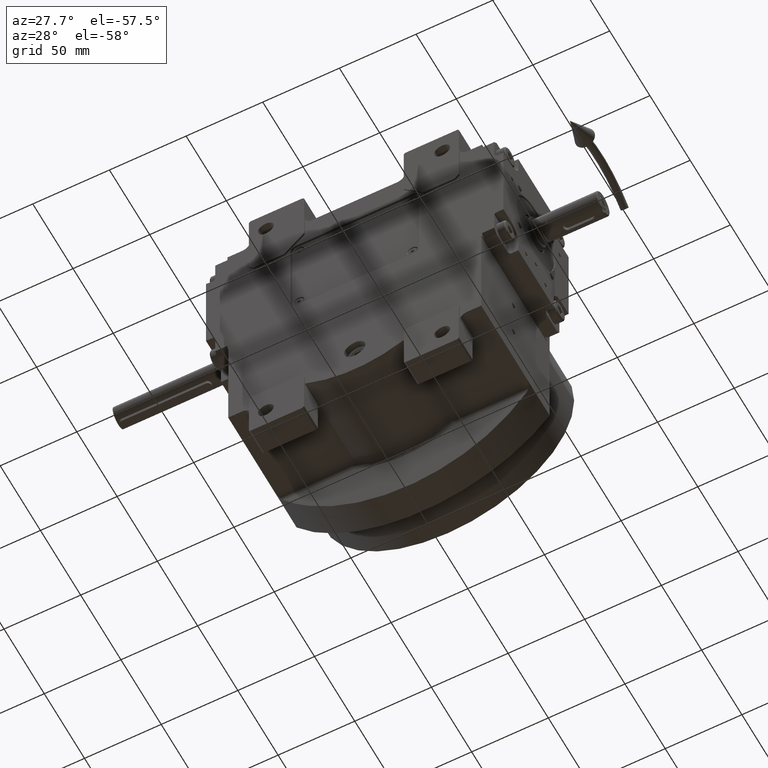
[diagram: clean part render]
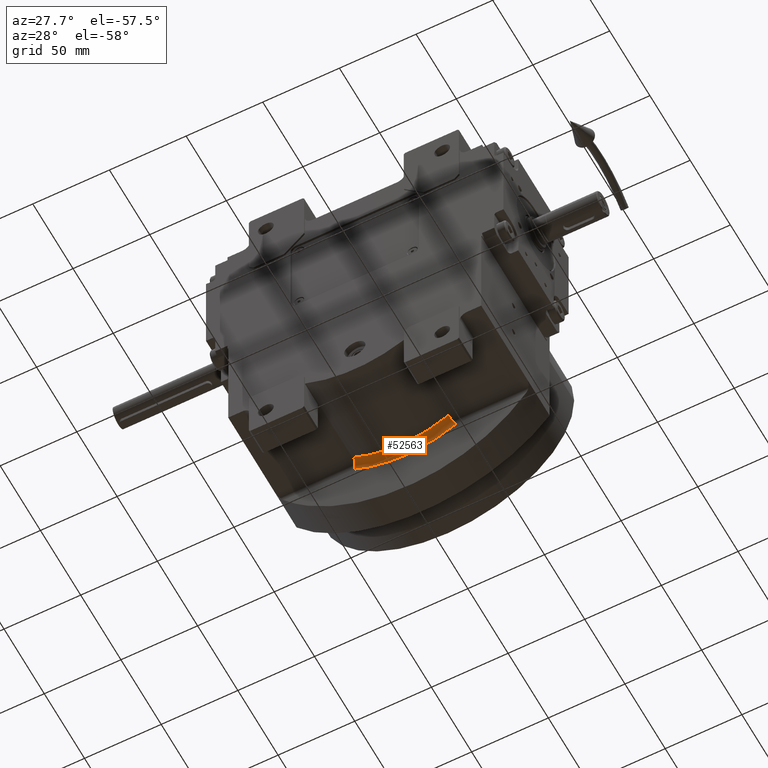
[diagram: same view with one face highlighted and labeled with its STEP entity id]
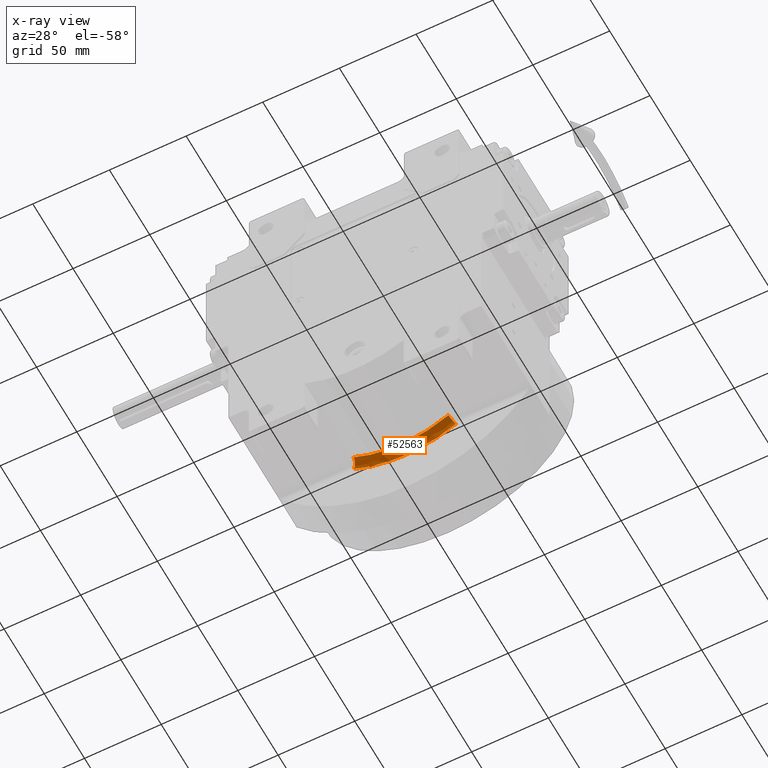
[diagram: x-ray of the same camera — body ghosted, the highlighted face saturated]
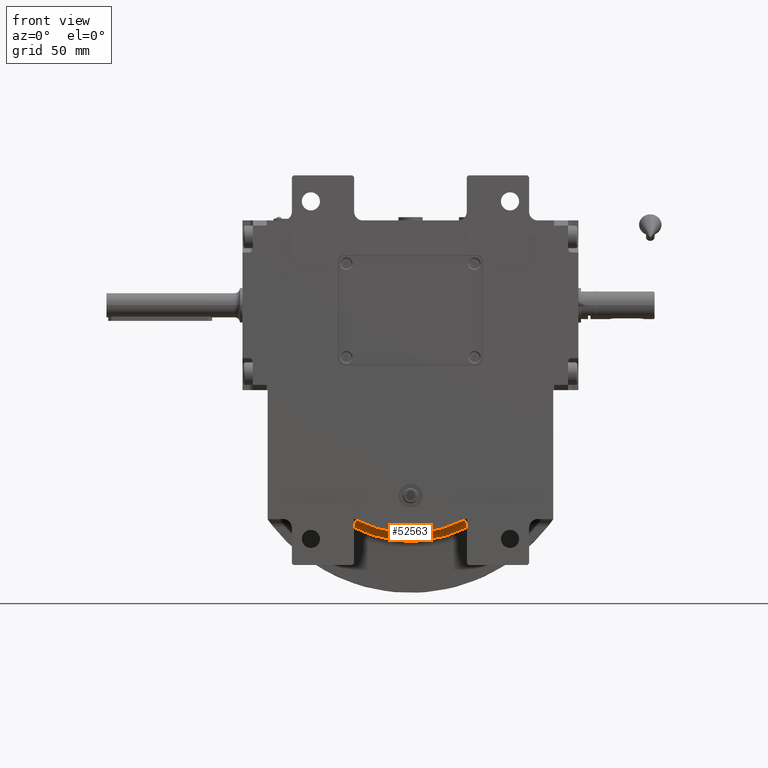
[diagram: same view with one face highlighted and labeled with its STEP entity id]
A machine part, auxiliary view. The second image highlights one B-rep face of the part: STEP entity #52563.
The next image is the same camera in x-ray: the body ghosted, the highlighted face saturated — about 0% of this face is hidden behind the body in this view.
A second angle (front view) of the same face is appended — the face is thin or edge-on in the first view.
In plain terms, the highlighted face is a freeform B-spline surface patch.
Its self-contained STEP definition (entity closure, byte-faithful):
#56 = CARTESIAN_POINT ( 'NONE',  ( 14.00735235895940001, 17.51551953820434804, -65.41954814128840212 ) ) ;
#154 = CARTESIAN_POINT ( 'NONE',  ( 31.74547530109787630, 20.30552541977634462, -60.17853831376050522 ) ) ;
#670 = CARTESIAN_POINT ( 'NONE',  ( 33.32502203102834670, 21.89931739189994886, -63.06422130460889974 ) ) ;
#701 = CARTESIAN_POINT ( 'NONE',  ( -4.867164775838819679, 21.38062313142870252, -68.31215727338249621 ) ) ;
#731 = CARTESIAN_POINT ( 'NONE',  ( 31.01082997317644896, 16.91834280290945003, -59.06778360361650471 ) ) ;
#1009 = CARTESIAN_POINT ( 'NONE',  ( 4.696800822195740466, 18.47300757156740048, -66.73299136699679934 ) ) ;
#1635 = CARTESIAN_POINT ( 'NONE',  ( -14.92925552228664010, 22.43463514342269960, -69.10560733178479609 ) ) ;
#2251 = CARTESIAN_POINT ( 'NONE',  ( -4.971671161972529340, 22.28796836702294826, -69.71304722794390329 ) ) ;
#2580 = CARTESIAN_POINT ( 'NONE',  ( 29.82807259730119753, 21.69214259482015095, -63.05631066464879808 ) ) ;
#4002 = CARTESIAN_POINT ( 'NONE',  ( 33.32502203102834670, 21.89931739189994886, -63.06422130460889974 ) ) ;
#4323 = CARTESIAN_POINT ( 'NONE',  ( 31.54095875828022599, 19.81191290899446855, -59.82985280089748414 ) ) ;
#4567 = CARTESIAN_POINT ( 'NONE',  ( -23.31309263405200127, 20.39445905987249930, -63.78361551056140399 ) ) ;
#4665 = CARTESIAN_POINT ( 'NONE',  ( 31.12368750863186051, 18.13956761744755397, -59.17709350793280976 ) ) ;
#4875 = CARTESIAN_POINT ( 'NONE',  ( 4.825413243487469472, 21.38089252597094969, -68.31510519091570188 ) ) ;
#4971 = CARTESIAN_POINT ( 'NONE',  ( 32.88977698398858251, 21.73860324339993610, -62.24470787149341788 ) ) ;
#5187 = CARTESIAN_POINT ( 'NONE',  ( -14.12086927449369966, 19.16926417740874911, -65.61028580125960730 ) ) ;
#5285 = CARTESIAN_POINT ( 'NONE',  ( 31.10165154074177352, 17.98725869836273006, -59.14819376876292267 ) ) ;
#5514 = CARTESIAN_POINT ( 'NONE',  ( -14.04715672780992008, 17.51472106833425002, -65.41105537727230512 ) ) ;
#6710 = VERTEX_POINT ( 'NONE', #20248 ) ;
#6875 = CARTESIAN_POINT ( 'NONE',  ( -31.16669107157252228, 18.57176978245651000, -59.22174434882904848 ) ) ;
#7058 = CARTESIAN_POINT ( 'NONE',  ( -14.75615015940871899, 22.16326237045709746, -68.31944875908919812 ) ) ;
#8826 = CARTESIAN_POINT ( 'NONE',  ( 32.29690182452948477, 21.21375352228058020, -61.15495260773317199 ) ) ;
#9142 = CARTESIAN_POINT ( 'NONE',  ( 31.04561413428934813, 17.52912269005599555, -59.08095735866881171 ) ) ;
#9707 = CARTESIAN_POINT ( 'NONE',  ( -4.737440298471509159, 18.47273911348515085, -66.73013256263419635 ) ) ;
#9804 = CARTESIAN_POINT ( 'NONE',  ( 31.21977500875764733, 18.66627516577064583, -59.31513820626550171 ) ) ;
#10009 = CARTESIAN_POINT ( 'NONE',  ( -14.31440710436212171, 20.63461172167005131, -66.38690850966169421 ) ) ;
#10326 = CARTESIAN_POINT ( 'NONE',  ( 22.87977691528549684, 18.11004521874100348, -62.86801402108770276 ) ) ;
#10654 = CARTESIAN_POINT ( 'NONE',  ( -22.99954056589934837, 18.92952171832104824, -63.04667322140360142 ) ) ;
#10956 = CARTESIAN_POINT ( 'NONE',  ( 31.58791220059754679, 20.03612887826825073, -59.90034523868260408 ) ) ;
#11105 = EDGE_CURVE ( 'NONE', #36128, #61800, #61182, .T. ) ;
#11301 = CARTESIAN_POINT ( 'NONE',  ( -22.88139142631801093, 17.27544324201323533, -62.86600932862140922 ) ) ;
#11382 = CARTESIAN_POINT ( 'NONE',  ( -33.32502203188484913, 21.89931762037159757, -63.06422128626171286 ) ) ;
#11581 = CARTESIAN_POINT ( 'NONE',  ( 24.28574528749259898, 22.19493289590700158, -66.39603628297889770 ) ) ;
#11909 = CARTESIAN_POINT ( 'NONE',  ( -24.03087230061749935, 21.92268178516724930, -65.63130644388060375 ) ) ;
#12208 = CARTESIAN_POINT ( 'NONE',  ( 32.93784733879725479, 21.83493790743320062, -62.32834323049090131 ) ) ;
#12243 = CARTESIAN_POINT ( 'NONE',  ( -14.04715675440153788, 17.51472253625830788, -65.41105537243242907 ) ) ;
#13659 = CARTESIAN_POINT ( 'NONE',  ( 32.46189448114522946, 21.39864433653107056, -61.45497471648384646 ) ) ;
#13781 = CARTESIAN_POINT ( 'NONE',  ( -31.01083289208810001, 16.91834344194605322, -59.06778513317789958 ) ) ;
#13981 = CARTESIAN_POINT ( 'NONE',  ( 31.18218361866833277, 18.47945513033626597, -59.25946096699433951 ) ) ;
#14049 = B_SPLINE_CURVE_WITH_KNOTS ( 'NONE', 3,
 ( #48495, #53979, #9142, #5285, #4665, #23683, #13981, #39145, #9804, #24338, #34639, #43699, #33362, #19162, #4323, #18503, #29496, #53638, #44328, #38170, #28844, #154, #58474, #29166, #19806, #39479, #8826, #57831, #48838, #44017, #14954, #13659, #54291, #33666, #63636, #48181, #63327, #43037, #38824, #49145, #58173, #53027, #43353, #59133, #4971, #28526, #19480, #4002 ),
 .UNSPECIFIED., .F., .F.,
 ( 4, 2, 2, 1, 1, 2, 2, 2, 2, 1, 1, 1, 2, 2, 2, 2, 2, 1, 1, 1, 2, 2, 2, 2, 1, 1, 2, 2, 4 ),
 ( 0.000000000000000000, 0.1250000000000210110, 0.1875000000000322242, 0.2187500000000378308, 0.2343750000000400791, 0.2421875000000407174, 0.2500000000000413003, 0.3750000000000577871, 0.4375000000000656697, 0.4687500000000708322, 0.4843750000000737743, 0.4921875000000754952, 0.4960937500000759393, 0.5000000000000763833, 0.6250000000000451861, 0.6875000000000315303, 0.7187500000000246470, 0.7343750000000213163, 0.7421875000000198730, 0.7460937500000194289, 0.7480468750000197620, 0.7500000000000199840, 0.8125000000000304201, 0.8437500000000349720, 0.8593750000000376366, 0.8671875000000388578, 0.8710937500000399680, 0.8750000000000410783, 1.000000000000000000 ),
 .UNSPECIFIED. ) ;
#14514 = CARTESIAN_POINT ( 'NONE',  ( 14.27385277678903996, 20.63541323951745099, -66.39559700889179794 ) ) ;
#14859 = CARTESIAN_POINT ( 'NONE',  ( 28.55215417126150257, 18.69975871979575288, -60.59011769471679543 ) ) ;
#14954 = CARTESIAN_POINT ( 'NONE',  ( 32.44551883454309404, 21.38175331640223931, -61.42508377505632922 ) ) ;
#15165 = CARTESIAN_POINT ( 'NONE',  ( -31.16669107689925156, 18.57176978219575147, -59.22174434604119853 ) ) ;
#15795 = CARTESIAN_POINT ( 'NONE',  ( 28.40796176214000113, 17.04610771505474887, -60.42674379178529875 ) ) ;
#16145 = CARTESIAN_POINT ( 'NONE',  ( -31.01083289208810001, 16.91834344194605322, -59.06778513317789958 ) ) ;
#16460 = CARTESIAN_POINT ( 'NONE',  ( 14.00735238547911443, 17.51552100612983764, -65.41954813648067102 ) ) ;
#17057 = CARTESIAN_POINT ( 'NONE',  ( -33.32502203188645495, 21.89931657337954718, -63.06422137785770587 ) ) ;
#18144 = B_SPLINE_CURVE_WITH_KNOTS ( 'NONE', 3,
 ( #731, #40044, #45515, #16460, #61566, #31627, #12243, #11301, #31934, #16145 ),
 .UNSPECIFIED., .F., .F.,
 ( 4, 1, 1, 1, 1, 1, 1, 4 ),
 ( 0.000000000000000000, 0.1367548681578994729, 0.2816978903022379632, 0.4273669404849712028, 0.5732621552178546187, 0.7189314110037055006, 0.8638748398661794115, 1.000000000000000000 ),
 .UNSPECIFIED. ) ;
#18503 = CARTESIAN_POINT ( 'NONE',  ( 31.61495374429933136, 20.00292026883701269, -59.95493905248166300 ) ) ;
#19162 = CARTESIAN_POINT ( 'NONE',  ( 31.49498994033155697, 19.68174472289167198, -59.75316347292854857 ) ) ;
#19371 = CARTESIAN_POINT ( 'NONE',  ( 4.691653036038920810, 17.63899493237729743, -66.73286931189659299 ) ) ;
#19480 = CARTESIAN_POINT ( 'NONE',  ( 33.18020202650393458, 21.87532044777984197, -62.78993234973685844 ) ) ;
#19698 = CARTESIAN_POINT ( 'NONE',  ( -31.01077873317780131, 16.91834296130654636, -59.06779971160970177 ) ) ;
#19806 = CARTESIAN_POINT ( 'NONE',  ( 32.13029773862931648, 20.99272843941696109, -60.85496276012026584 ) ) ;
#20048 = CARTESIAN_POINT ( 'NONE',  ( -22.88139138470734935, 17.27544177450010210, -62.86600934290269294 ) ) ;
#20248 = CARTESIAN_POINT ( 'NONE',  ( 31.01082997317644896, 16.91834280290945003, -59.06778360361650471 ) ) ;
#20906 =( BOUNDED_CURVE ( )  B_SPLINE_CURVE ( 3, ( #37776, #36521, #52295, #41699 ),
 .UNSPECIFIED., .F., .F. ) 
 B_SPLINE_CURVE_WITH_KNOTS ( ( 4, 4 ),
 ( 2.660439210010309807, 3.622819812707135156 ),
 .UNSPECIFIED. ) 
 CURVE ( )  GEOMETRIC_REPRESENTATION_ITEM ( )  RATIONAL_B_SPLINE_CURVE ( ( 1.000000000000000000, 0.9242964254526402357, 0.9242964254526402357, 1.000000000000000000 ) ) 
 REPRESENTATION_ITEM ( '' )  );
#20992 = CARTESIAN_POINT ( 'NONE',  ( -32.93784668604335053, 21.83493766567294969, -62.32834200138500336 ) ) ;
#21117 = CARTESIAN_POINT ( 'NONE',  ( -32.55681397492736551, 21.56374798292203465, -61.62232050867114452 ) ) ;
#21921 = CARTESIAN_POINT ( 'NONE',  ( -5.030020990120320334, 22.55938202342179721, -70.51593044803149724 ) ) ;
#22243 = CARTESIAN_POINT ( 'NONE',  ( 24.00439848071960114, 21.92363581297800224, -65.64196784662131279 ) ) ;
#23683 = CARTESIAN_POINT ( 'NONE',  ( 31.16183598183866010, 18.36642731577033416, -59.23035405953199017 ) ) ;
#24240 = CARTESIAN_POINT ( 'NONE',  ( 14.40534115359726108, 21.25685593455874667, -66.95800447658710652 ) ) ;
#24338 = CARTESIAN_POINT ( 'NONE',  ( 31.22762445750191773, 18.70348095435261371, -59.32691887208487458 ) ) ;
#24541 = CARTESIAN_POINT ( 'NONE',  ( 4.781296336348240139, 20.75935661506025198, -67.73929571022088680 ) ) ;
#24873 = CARTESIAN_POINT ( 'NONE',  ( 32.55681462562264983, 21.56374821713194834, -61.62232172104100414 ) ) ;
#25214 = ORIENTED_EDGE ( 'NONE', *, *, #33685, .F. ) ;
#25516 = CARTESIAN_POINT ( 'NONE',  ( 31.04069178621239899, 17.75166722819815135, -59.05218227062489689 ) ) ;
#25950 = CARTESIAN_POINT ( 'NONE',  ( -31.04069116693310093, 17.75166709644413032, -59.05218110792236530 ) ) ;
#26313 = ORIENTED_EDGE ( 'NONE', *, *, #33337, .F. ) ;
#26454 = CARTESIAN_POINT ( 'NONE',  ( 24.57122995982555125, 22.25933729975060160, -67.17976073878848808 ) ) ;
#26765 = CARTESIAN_POINT ( 'NONE',  ( -24.31252826494619868, 22.19397859127619910, -66.38524724971789226 ) ) ;
#28526 = CARTESIAN_POINT ( 'NONE',  ( 33.03611504535550125, 21.82225053526321545, -62.51765408202845720 ) ) ;
#28844 = CARTESIAN_POINT ( 'NONE',  ( 31.74138472376231945, 20.29667781040725671, -60.17147782873599482 ) ) ;
#29166 = CARTESIAN_POINT ( 'NONE',  ( 31.94808787260287275, 20.71095759347944920, -60.53067044737554170 ) ) ;
#29400 = CARTESIAN_POINT ( 'NONE',  ( 22.85616081557125057, 17.27639106045925033, -62.87610623188570713 ) ) ;
#29496 = CARTESIAN_POINT ( 'NONE',  ( 31.65321108983892273, 20.09736062366522091, -60.01999292215448634 ) ) ;
#29704 = CARTESIAN_POINT ( 'NONE',  ( -28.95139888223744862, 20.16372637516084865, -61.28308895748990182 ) ) ;
#30352 = CARTESIAN_POINT ( 'NONE',  ( -28.41991945470260106, 17.04552026981649604, -60.42049554877999640 ) ) ;
#30652 = CARTESIAN_POINT ( 'NONE',  ( -4.822666307990410850, 20.75908742067844770, -67.73637694921080765 ) ) ;
#31286 = CARTESIAN_POINT ( 'NONE',  ( -5.089152464824869604, 22.62381410115245117, -71.34811861753890128 ) ) ;
#31595 = CARTESIAN_POINT ( 'NONE',  ( -29.84060878953535223, 21.69155164714265283, -63.04971742414029734 ) ) ;
#31627 = CARTESIAN_POINT ( 'NONE',  ( -4.732248203306282264, 17.63872821102710375, -66.73001676852754827 ) ) ;
#31934 = CARTESIAN_POINT ( 'NONE',  ( -28.41991950416602108, 17.04552173694796480, -60.42049552587643291 ) ) ;
#32018 = CARTESIAN_POINT ( 'NONE',  ( -31.58791156969763847, 20.03612868511561729, -59.90034405976933840 ) ) ;
#33337 = EDGE_CURVE ( 'NONE', #6710, #59982, #14049, .T. ) ;
#33362 = CARTESIAN_POINT ( 'NONE',  ( 31.36703012884573738, 19.28548645730986522, -59.54277345538238819 ) ) ;
#33666 = CARTESIAN_POINT ( 'NONE',  ( 32.47365278877944661, 21.41060890761806945, -61.47644933044248461 ) ) ;
#33685 = EDGE_CURVE ( 'NONE', #59982, #61800, #20906, .T. ) ;
#34210 = CARTESIAN_POINT ( 'NONE',  ( 4.716475907780900201, 19.29378783814249942, -66.94191319398539974 ) ) ;
#34218 = B_SPLINE_SURFACE_WITH_KNOTS ( 'NONE', 3, 3, ( 
 ( #53869, #15795, #29400, #56, #19371, #59348, #5514, #20048, #30352, #19698 ),
 ( #25516, #39703, #10326, #45173, #1009, #9707, #39359, #44877, #59026, #40329 ),
 ( #35488, #14859, #55144, #54191, #34210, #54821, #5187, #10654, #34547, #15165 ),
 ( #10956, #63538, #49047, #14514, #24541, #30652, #10009, #4567, #29704, #44227 ),
 ( #34845, #49360, #49669, #24240, #4875, #701, #49998, #59647, #39038, #58693 ),
 ( #24873, #2580, #22243, #56385, #36423, #2251, #7058, #11909, #31595, #45816 ),
 ( #12208, #46752, #11581, #36093, #50299, #21921, #1635, #26765, #41609, #20992 ),
 ( #51236, #45480, #26454, #40656, #51553, #31286, #35780, #55761, #61231, #17057 ) ),
 .UNSPECIFIED., .F., .F., .F.,
 ( 4, 2, 2, 4 ),
 ( 4, 1, 1, 1, 1, 1, 1, 4 ),
 ( -3.163046159672019669E-08, 0.4978212218291189761, 0.9956424752886989804, 1.493463728748280150 ),
 ( 0.006889750059834529733, 0.1416752495197665940, 0.2845309876452994935, 0.4281022984820279653, 0.5718965169363260381, 0.7154680304153390180, 0.8583241694019729806, 0.9924890290873750187 ),
 .UNSPECIFIED. ) ;
#34547 = CARTESIAN_POINT ( 'NONE',  ( -28.56416570177500347, 18.69917002794349870, -60.58382611653190253 ) ) ;
#34639 = CARTESIAN_POINT ( 'NONE',  ( 31.23192383456696319, 18.72353514523844709, -59.33339922539087752 ) ) ;
#34845 = CARTESIAN_POINT ( 'NONE',  ( 31.87644974859629698, 20.65715170794420175, -60.39861510849959103 ) ) ;
#35488 = CARTESIAN_POINT ( 'NONE',  ( 31.16669169361859915, 18.57176993625214934, -59.22174551470879322 ) ) ;
#35780 = CARTESIAN_POINT ( 'NONE',  ( -15.10475712193199982, 22.49905751565589895, -69.92120495044080997 ) ) ;
#36093 = CARTESIAN_POINT ( 'NONE',  ( 14.88696317330651908, 22.43543841980310205, -69.11468726967150644 ) ) ;
#36128 = VERTEX_POINT ( 'NONE', #13781 ) ;
#36423 = CARTESIAN_POINT ( 'NONE',  ( 4.929023372499790057, 22.28823805376820033, -69.71606154705429503 ) ) ;
#36521 = CARTESIAN_POINT ( 'NONE',  ( 12.01816137815721319, 22.87264572054066392, -74.18941237894156870 ) ) ;
#37776 = CARTESIAN_POINT ( 'NONE',  ( 33.32502203102834670, 21.89931739189994886, -63.06422130460889974 ) ) ;
#38170 = CARTESIAN_POINT ( 'NONE',  ( 31.73442872341959031, 20.28153331795222414, -60.15947955588395502 ) ) ;
#38824 = CARTESIAN_POINT ( 'NONE',  ( 32.73785730909838065, 21.64039057982418157, -61.96228546748485400 ) ) ;
#39038 = CARTESIAN_POINT ( 'NONE',  ( -29.21634074473255183, 20.78483292279220151, -61.79491580038870779 ) ) ;
#39145 = CARTESIAN_POINT ( 'NONE',  ( 31.20816117302825887, 18.61038703484669554, -59.29777959849781865 ) ) ;
#39359 = CARTESIAN_POINT ( 'NONE',  ( -14.06226266106533984, 18.34860781044285005, -65.40830587018379561 ) ) ;
#39479 = CARTESIAN_POINT ( 'NONE',  ( 32.19470723528011291, 21.08379086141525249, -60.97043025185038090 ) ) ;
#39703 = CARTESIAN_POINT ( 'NONE',  ( 28.43605213426235068, 17.87954483818865015, -60.41374484605130135 ) ) ;
#40044 = CARTESIAN_POINT ( 'NONE',  ( 28.40796181158869160, 17.04610918218732607, -60.42674376890292365 ) ) ;
#40329 = CARTESIAN_POINT ( 'NONE',  ( -31.04069117223964724, 17.75166709618359917, -59.05218110514839935 ) ) ;
#40656 = CARTESIAN_POINT ( 'NONE',  ( 15.06196761862794986, 22.49986085497370070, -69.93039170009349448 ) ) ;
#40778 = CARTESIAN_POINT ( 'NONE',  ( -32.93784668041924846, 21.83493766593460350, -62.32834200434140826 ) ) ;
#41609 = CARTESIAN_POINT ( 'NONE',  ( -30.19003038393654847, 21.96277789559494664, -63.77278362070629214 ) ) ;
#41699 = CARTESIAN_POINT ( 'NONE',  ( -33.32502203188484913, 21.89931762037159757, -63.06422128626171286 ) ) ;
#43037 = CARTESIAN_POINT ( 'NONE',  ( 32.70161650328918768, 21.61325199542458009, -61.89523957644733798 ) ) ;
#43353 = CARTESIAN_POINT ( 'NONE',  ( 32.87377611748129880, 21.72926547516225426, -62.21487830792446516 ) ) ;
#43699 = CARTESIAN_POINT ( 'NONE',  ( 31.29500154152510660, 19.01373741311381593, -59.42881663641343692 ) ) ;
#44017 = CARTESIAN_POINT ( 'NONE',  ( 32.41307128449374630, 21.34748462068779773, -61.36591535068812675 ) ) ;
#44227 = CARTESIAN_POINT ( 'NONE',  ( -31.58791157509390501, 20.03612868485445020, -59.90034405693920405 ) ) ;
#44328 = CARTESIAN_POINT ( 'NONE',  ( 31.72403428020070848, 20.25877241233648007, -60.14156094461609570 ) ) ;
#44543 = FACE_OUTER_BOUND ( 'NONE', #51603, .T. ) ;
#44877 = CARTESIAN_POINT ( 'NONE',  ( -22.90502919991255126, 18.10909508215650021, -62.85789642589649162 ) ) ;
#45173 = CARTESIAN_POINT ( 'NONE',  ( 14.02241744644276089, 18.34940709497864830, -65.41681689698070556 ) ) ;
#45480 = CARTESIAN_POINT ( 'NONE',  ( 30.53208018328170326, 22.02775668441359969, -64.53240275133370574 ) ) ;
#45515 = CARTESIAN_POINT ( 'NONE',  ( 22.85616085714367784, 17.27639252797388636, -62.87610621764086716 ) ) ;
#45614 = CARTESIAN_POINT ( 'NONE',  ( -31.87644911174986717, 20.65715149810053575, -60.39861391993667894 ) ) ;
#45816 = CARTESIAN_POINT ( 'NONE',  ( -32.55681398048675135, 21.56374798266045190, -61.62232050574960596 ) ) ;
#46752 = CARTESIAN_POINT ( 'NONE',  ( 30.17734829654985163, 21.96336904773800214, -63.77945558927829239 ) ) ;
#48181 = CARTESIAN_POINT ( 'NONE',  ( 32.53492388213224018, 21.47231325460548845, -61.58839665703606414 ) ) ;
#48286 = ORIENTED_EDGE ( 'NONE', *, *, #11105, .T. ) ;
#48495 = CARTESIAN_POINT ( 'NONE',  ( 31.01082997317644896, 16.91834280290945003, -59.06778360361650471 ) ) ;
#48838 = CARTESIAN_POINT ( 'NONE',  ( 32.38578059700287781, 21.31730832901589423, -61.31625427766986292 ) ) ;
#49047 = CARTESIAN_POINT ( 'NONE',  ( 23.28740231381804904, 20.39541152834794957, -63.79394134139419492 ) ) ;
#49145 = CARTESIAN_POINT ( 'NONE',  ( 32.79465830443341900, 21.67953257991657878, -62.06767265342949003 ) ) ;
#49360 = CARTESIAN_POINT ( 'NONE',  ( 29.20406345554400218, 20.78542318693419944, -61.80136542034099989 ) ) ;
#49669 = CARTESIAN_POINT ( 'NONE',  ( 23.50123542103359853, 21.01668028652325049, -64.33051668512079857 ) ) ;
#49998 = CARTESIAN_POINT ( 'NONE',  ( -14.44626766475125912, 21.25605380959349944, -66.94922945192139707 ) ) ;
#50299 = CARTESIAN_POINT ( 'NONE',  ( 4.986872724180660299, 22.55965179757359707, -70.51898095867380789 ) ) ;
#51236 = CARTESIAN_POINT ( 'NONE',  ( 33.32502269231530079, 21.89931681687009757, -63.06422262139899004 ) ) ;
#51360 = CARTESIAN_POINT ( 'NONE',  ( -31.01083289208810001, 16.91834344194605322, -59.06778513317789958 ) ) ;
#51553 = CARTESIAN_POINT ( 'NONE',  ( 5.045496962078679815, 22.62408389605404935, -71.35120501382979796 ) ) ;
#51603 = EDGE_LOOP ( 'NONE', ( #48286, #25214, #26313, #57390 ) ) ;
#52295 = CARTESIAN_POINT ( 'NONE',  ( -12.01815504891360398, 22.87264572054066747, -74.18941237894163976 ) ) ;
#52563 = ADVANCED_FACE ( 'NONE', ( #44543 ), #34218, .F. ) ;
#53027 = CARTESIAN_POINT ( 'NONE',  ( 32.85858335703438371, 21.72023874465105919, -62.18656787724253121 ) ) ;
#53638 = CARTESIAN_POINT ( 'NONE',  ( 31.70005746339736064, 20.20535973424203746, -60.10030255051461978 ) ) ;
#53869 = CARTESIAN_POINT ( 'NONE',  ( 31.01077934629949695, 16.91834307092394951, -59.06780087753279673 ) ) ;
#53979 = CARTESIAN_POINT ( 'NONE',  ( 31.02168895981105123, 17.22213103072386886, -59.06211671102205685 ) ) ;
#54191 = CARTESIAN_POINT ( 'NONE',  ( 14.08085991842393980, 19.17006426368480021, -65.61884124603939483 ) ) ;
#54291 = CARTESIAN_POINT ( 'NONE',  ( 32.46894513212469491, 21.40583022696208815, -61.46785074271840443 ) ) ;
#54821 = CARTESIAN_POINT ( 'NONE',  ( -4.757285405164939363, 19.29351911573484912, -66.93903934585279103 ) ) ;
#55144 = CARTESIAN_POINT ( 'NONE',  ( 22.97418834680910038, 18.93047269203499994, -63.05684263419799862 ) ) ;
#55298 = CARTESIAN_POINT ( 'NONE',  ( -33.32502203188484913, 21.89931762037159757, -63.06422128626171286 ) ) ;
#55761 = CARTESIAN_POINT ( 'NONE',  ( -24.59832774310959635, 22.25838292940424878, -67.16884479673248620 ) ) ;
#56385 = CARTESIAN_POINT ( 'NONE',  ( 14.71434768859753994, 22.16406538171980145, -68.32842106813259875 ) ) ;
#57390 = ORIENTED_EDGE ( 'NONE', *, *, #58273, .T. ) ;
#57831 = CARTESIAN_POINT ( 'NONE',  ( 32.33189586051206277, 21.25596648519276499, -61.21834353553233399 ) ) ;
#58173 = CARTESIAN_POINT ( 'NONE',  ( 32.82366855189387422, 21.69871108339111743, -62.12157008379543299 ) ) ;
#58273 = EDGE_CURVE ( 'NONE', #6710, #36128, #18144, .T. ) ;
#58474 = CARTESIAN_POINT ( 'NONE',  ( 31.84133966923761250, 20.51185675261430674, -60.34408543625058741 ) ) ;
#58693 = CARTESIAN_POINT ( 'NONE',  ( -31.87644911719445062, 20.65715149783920168, -60.39861391707879790 ) ) ;
#59026 = CARTESIAN_POINT ( 'NONE',  ( -28.44801819512094809, 17.87895676465924666, -60.40748456794140253 ) ) ;
#59133 = CARTESIAN_POINT ( 'NONE',  ( 32.88395557830983051, 21.73523698106782831, -62.23385290234188005 ) ) ;
#59348 = CARTESIAN_POINT ( 'NONE',  ( -4.732248194166399635, 17.63872674288190012, -66.73001676832350881 ) ) ;
#59647 = CARTESIAN_POINT ( 'NONE',  ( -23.52715854366175208, 21.01572718413149943, -64.32008873556929984 ) ) ;
#59982 = VERTEX_POINT ( 'NONE', #670 ) ;
#61182 = B_SPLINE_CURVE_WITH_KNOTS ( 'NONE', 3,
 ( #51360, #25950, #6875, #32018, #45614, #21117, #40778, #11382 ),
 .UNSPECIFIED., .F., .F.,
 ( 4, 2, 2, 4 ),
 ( 0.000000000000000000, 0.3333333333333333148, 0.6666666666666662966, 1.000000000000000000 ),
 .UNSPECIFIED. ) ;
#61231 = CARTESIAN_POINT ( 'NONE',  ( -30.54491132010454990, 22.02716548373155092, -64.52565230812069785 ) ) ;
#61566 = CARTESIAN_POINT ( 'NONE',  ( 4.691653045100787622, 17.63899640052298068, -66.73286931211167428 ) ) ;
#61800 = VERTEX_POINT ( 'NONE', #55298 ) ;
#63327 = CARTESIAN_POINT ( 'NONE',  ( 32.59772963357409736, 21.53007303536100636, -61.70355806859076608 ) ) ;
#63538 = CARTESIAN_POINT ( 'NONE',  ( 28.93923049320650165, 20.16431617107784646, -61.28947596362220196 ) ) ;
#63636 = CARTESIAN_POINT ( 'NONE',  ( 32.47660400887743037, 21.41359017710874468, -61.48184080176081068 ) ) ;